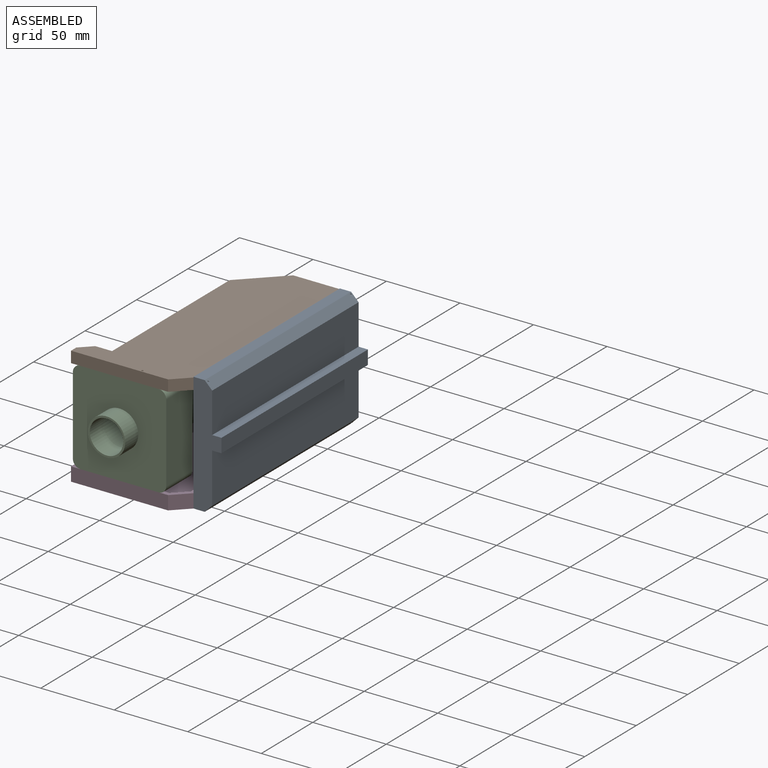
[diagram: assembled view]
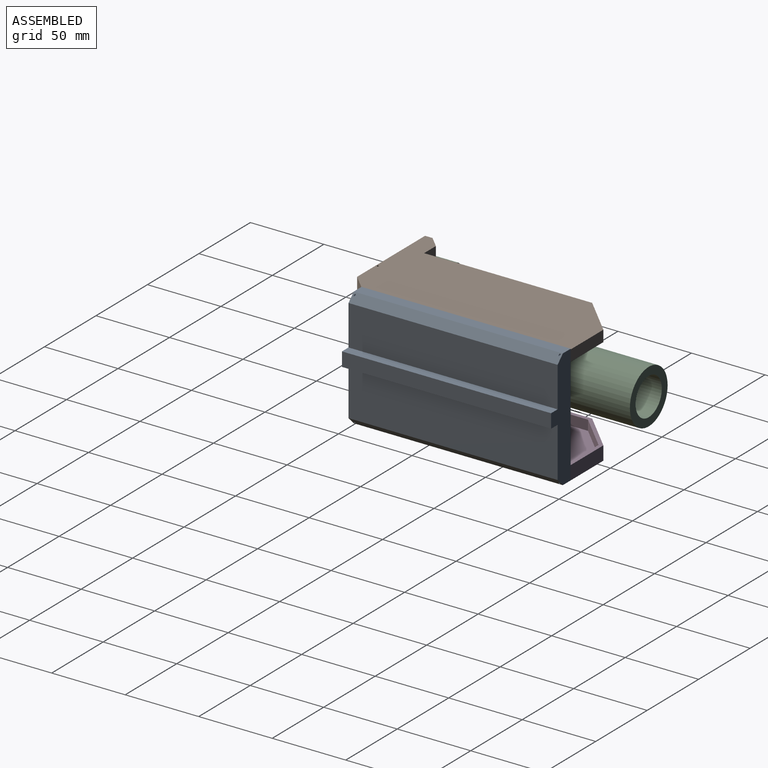
[diagram: assembled view, second angle]
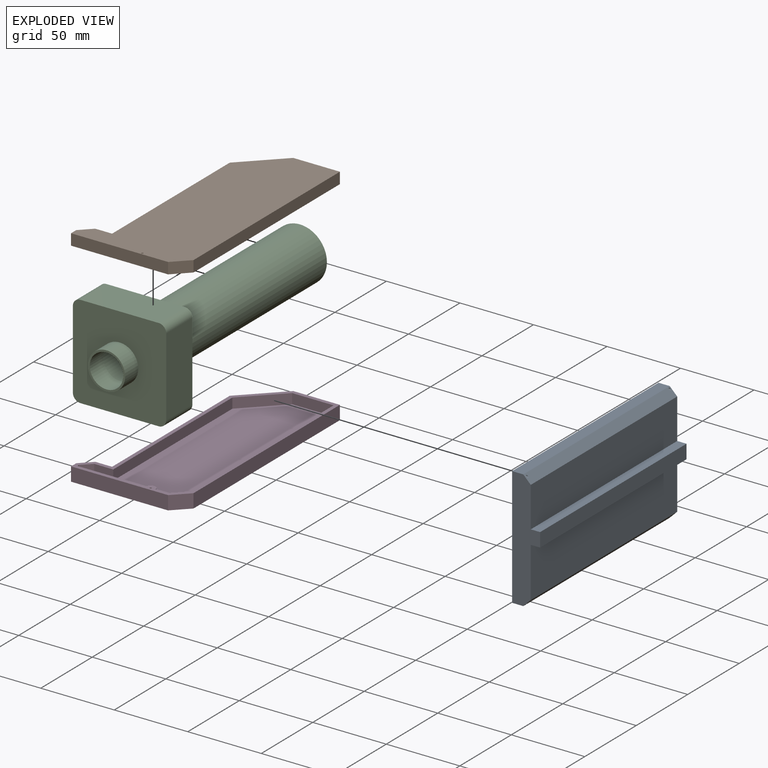
[diagram: exploded view]
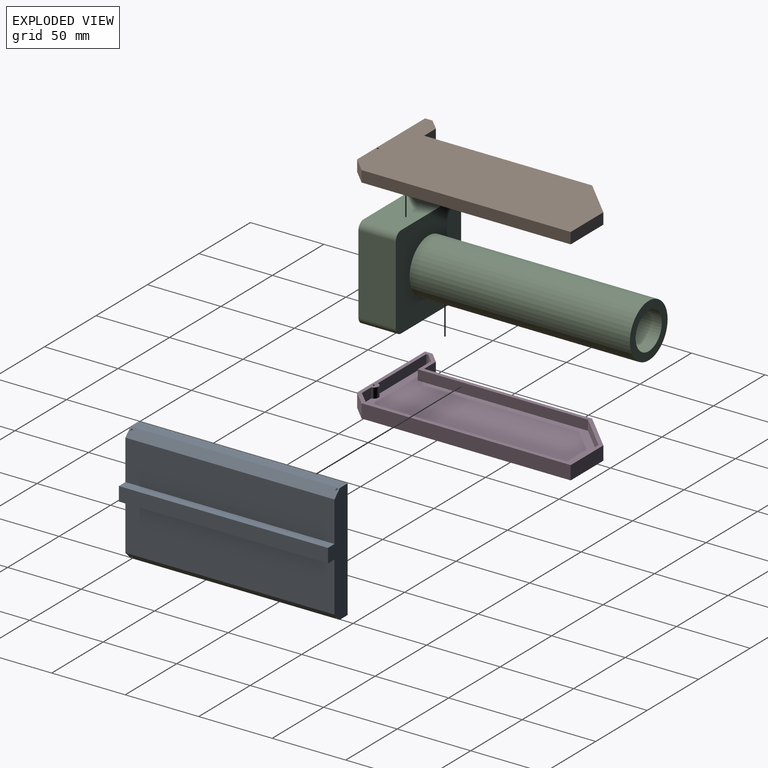
[diagram: exploded view, second angle]
ASSEMBLY  parts=4 mates=3
PART A: 16 faces, bbox 142.2x19.1x81 mm
  f0: plane 142.24x27.34mm, normal (0,-1,0), area 3888.8mm2, adj f2,f8,f11,f13
  f1: plane 142.24x7.62mm, normal (0,0,1), area 1083.9mm2, adj f2,f8,f10,f11
  f2: plane 80.96x19.05mm, normal (-1,0,0), area 1062.9mm2, adj f0,f1,f3,f9,f10,f11,f12,f13
  f3: plane 142.24x7.62mm, normal (0,0,-1), area 1083.9mm2, adj f2,f8,f10,f12
  f4: cylinder r=0.64mm len=9.31mm, axis (0,1,0), area 34.6mm2, adj f10,f11
  f5: cylinder r=0.64mm len=9.74mm, axis (0,1,0), area 36.3mm2, adj f10,f11
  f6: cylinder r=0.64mm len=9.64mm, axis (0,1,0), area 35.9mm2, adj f10,f12
  f7: cylinder r=0.64mm len=9.55mm, axis (0,1,0), area 35.5mm2, adj f10,f12
  f8: plane 80.96x19.05mm, normal (1,0,0), area 1062.9mm2, adj f0,f1,f3,f9,f10,f11,f12,f13
  f9: plane 142.24x33.94mm, normal (0,-1,0), area 4827.3mm2, adj f2,f8,f12,f14
  f10: plane 142.24x80.96mm, normal (0,1,0), area 11511mm2, adj f1,f2,f3,f4,f5,f6,f7,f8
  f11: plane 142.24x5.08mm, normal (0,-0.71,0.71), area 1018.3mm2, adj f0,f1,f2,f4,f5,f8
  f12: plane 142.24x5.08mm, normal (0,-0.71,-0.71), area 1018.3mm2, adj f2,f3,f6,f7,f8,f9
  f13: plane 142.24x6.35mm, normal (0,0,1), area 903.2mm2, adj f0,f2,f8,f15
  f14: plane 142.24x6.35mm, normal (0,0,-1), area 903.2mm2, adj f2,f8,f9,f15
  f15: plane 142.24x9.53mm, normal (0,-1,0), area 1354.8mm2, adj f2,f8,f13,f14
PART B: 24 faces, bbox 152.4x7.6x76.2 mm
  f0: plane 152.4x76.2mm, normal (0,1,0), area 1081.3mm2, adj f1,f2,f3,f4,f5,f7,f8,f9
  f1: plane 142.24x7.62mm, normal (0,0,1), area 1083.9mm2, adj f0,f2,f6,f11
  f2: plane 31.75x7.62mm, normal (-1,0,0), area 241.9mm2, adj f0,f1,f6,f7
  f3: plane 114.3x7.62mm, normal (0,0,-1), area 871mm2, adj f0,f6,f7,f8
  f4: cylinder r=0.64mm len=7.62mm, axis (0,1,0), area 30.4mm2, adj f0,f6
  f5: plane 66.04x7.62mm, normal (1,0,0), area 503.2mm2, adj f0,f6,f9,f11
  f6: plane 152.4x76.2mm, normal (0,-1,0), area 8547.1mm2, adj f1,f2,f3,f4,f5,f7,f8,f9
  f7: plane 25.4x25.4mm, normal (-0.71,0,-0.71), area 273.7mm2, adj f0,f2,f3,f6
  f8: plane 11.43x7.62mm, normal (-1,0,0), area 87.1mm2, adj f0,f3,f6,f10
  f9: plane 7.62x5.08mm, normal (0,0,-1), area 38.7mm2, adj f0,f5,f6,f10
  f10: plane 7.62x7.62mm, normal (-0.71,0,-0.71), area 82.1mm2, adj f0,f6,f8,f9
  f11: plane 10.16x10.16mm, normal (0.71,0,0.71), area 109.5mm2, adj f0,f1,f5,f6
  f12: plane 14.45x5.08mm, normal (-1,0,0), area 73.4mm2, adj f0,f16,f18,f23
  f13: plane 138.65x5.08mm, normal (0,0,-1), area 704.3mm2, adj f0,f14,f18,f23
  f14: plane 28.16x5.08mm, normal (1,0,0), area 143mm2, adj f0,f13,f18,f19
  f15: plane 115.79x5.08mm, normal (0,0,1), area 588.2mm2, adj f0,f18,f19,f20
  f16: cylinder r=3.17mm len=5.82mm, axis (0,1,0), area 37.4mm2, adj f0,f12,f17,f18
  f17: plane 42.17x5.08mm, normal (-1,0,0), area 214.2mm2, adj f0,f16,f18,f21
  f18: plane 147.32x71.12mm, normal (0,1,0), area 7465.8mm2, adj f12,f13,f14,f15,f16,f17,f19,f20
  f19: plane 23.91x23.91mm, normal (0.71,0,0.71), area 171.8mm2, adj f0,f14,f15,f18
  f20: plane 12.92x5.08mm, normal (1,0,0), area 65.6mm2, adj f0,f15,f18,f22
  f21: plane 5.08x1.49mm, normal (0,0,1), area 7.6mm2, adj f0,f17,f18,f22
  f22: plane 6.13x6.13mm, normal (0.71,0,0.71), area 44.1mm2, adj f0,f18,f20,f21
  f23: plane 8.67x8.67mm, normal (-0.71,0,-0.71), area 62.3mm2, adj f0,f12,f13,f18
PART C: 17 faces, bbox 63.5x188x63.5 mm
  f0: cylinder r=12.7mm len=174.75mm, axis (0,1,0), area 13944.6mm2, adj f8,f14
  f1: plane 53.34x25.4mm, normal (0,0,1), area 1354.8mm2, adj f5,f6,f9,f12
  f2: plane 53.34x25.4mm, normal (-1,0,0), area 1354.8mm2, adj f5,f6,f9,f10
  f3: plane 53.34x25.4mm, normal (0,0,-1), area 1354.8mm2, adj f5,f6,f10,f11
  f4: plane 53.34x25.4mm, normal (1,0,0), area 1354.8mm2, adj f5,f6,f11,f12
  f5: plane 63.5x63.5mm, normal (0,-1,0), area 3503.4mm2, adj f1,f2,f3,f4,f9,f10,f11,f12
  f6: plane 63.5x63.5mm, normal (0,1,0), area 2955.2mm2, adj f1,f2,f3,f4,f7,f9,f10,f11
  f7: cylinder r=18.32mm len=149.86mm, axis (0,-1,0), area 17253.9mm2, adj f6,f8
  f8: plane 36.65x36.65mm, normal (0,1,0), area 548.2mm2, adj f0,f7
  f9: cylinder r=5.08mm len=25.4mm, axis (0,-1,0), area 202.7mm2, adj f1,f2,f5,f6
  f10: cylinder r=5.08mm len=25.4mm, axis (0,1,0), area 202.7mm2, adj f2,f3,f5,f6
  f11: cylinder r=5.08mm len=25.4mm, axis (0,-1,0), area 202.7mm2, adj f3,f4,f5,f6
  f12: cylinder r=5.08mm len=25.4mm, axis (0,1,0), area 202.7mm2, adj f1,f4,f5,f6
  f13: cylinder r=11.38mm len=22.75mm, axis (0,-1,0), area 944mm2, adj f14,f16
  f14: plane 25.4x25.4mm, normal (0,1,0), area 100.2mm2, adj f0,f13
  f15: cylinder r=12.7mm len=25.4mm, axis (0,1,0), area 1013.4mm2, adj f5,f16
  f16: plane 25.4x25.4mm, normal (0,-1,0), area 100.2mm2, adj f13,f15
PART D: 24 faces, bbox 152.4x9.4x76.2 mm
  f0: plane 152.4x76.2mm, normal (0,-1,0), area 1086.4mm2, adj f1,f2,f3,f4,f5,f7,f8,f9
  f1: plane 114.3x9.4mm, normal (0,0,-1), area 1074.2mm2, adj f0,f6,f7,f8
  f2: plane 142.24x9.4mm, normal (0,0,1), area 1336.8mm2, adj f0,f3,f6,f11
  f3: plane 31.75x9.4mm, normal (-1,0,0), area 298.4mm2, adj f0,f2,f6,f7
  f4: cylinder r=0.63mm len=9.4mm, axis (0,1,0), area 37.3mm2, adj f0,f6
  f5: plane 66.04x9.4mm, normal (1,0,0), area 620.6mm2, adj f0,f6,f9,f11
  f6: plane 152.4x76.2mm, normal (0,1,0), area 8547.1mm2, adj f1,f2,f3,f4,f5,f7,f8,f9
  f7: plane 25.4x25.4mm, normal (-0.71,0,-0.71), area 337.6mm2, adj f0,f1,f3,f6
  f8: plane 11.43x9.4mm, normal (-1,0,0), area 107.4mm2, adj f0,f1,f6,f10
  f9: plane 9.4x5.08mm, normal (0,0,-1), area 47.7mm2, adj f0,f5,f6,f10
  f10: plane 9.4x7.62mm, normal (-0.71,0,-0.71), area 101.3mm2, adj f0,f6,f8,f9
  f11: plane 10.16x10.16mm, normal (0.71,0,0.71), area 135mm2, adj f0,f2,f5,f6
  f12: plane 9.15x6.86mm, normal (-1,0,0), area 62.8mm2, adj f0,f16,f18,f23
  f13: plane 115.79x6.86mm, normal (0,0,1), area 794.1mm2, adj f0,f18,f19,f20
  f14: plane 138.65x6.86mm, normal (0,0,-1), area 950.8mm2, adj f0,f15,f18,f23
  f15: plane 28.16x6.86mm, normal (1,0,0), area 193.1mm2, adj f0,f14,f18,f19
  f16: cylinder r=3.17mm len=6.86mm, axis (0,1,0), area 62.5mm2, adj f0,f12,f17,f18
  f17: plane 47.01x6.86mm, normal (-1,0,0), area 322.4mm2, adj f0,f16,f18,f21
  f18: plane 147.32x71.12mm, normal (0,-1,0), area 7460.7mm2, adj f12,f13,f14,f15,f16,f17,f19,f20
  f19: plane 23.91x23.91mm, normal (0.71,0,0.71), area 231.9mm2, adj f0,f13,f15,f18
  f20: plane 12.92x6.86mm, normal (1,0,0), area 88.6mm2, adj f0,f13,f18,f22
  f21: plane 6.86x1.49mm, normal (0,0,1), area 10.2mm2, adj f0,f17,f18,f22
  f22: plane 6.86x6.13mm, normal (0.71,0,0.71), area 59.5mm2, adj f0,f18,f20,f21
  f23: plane 8.67x8.67mm, normal (-0.71,0,-0.71), area 84.1mm2, adj f0,f12,f14,f18
PLACE A rot(axis=(0,0,1),90deg) t=(158.26,-72.48,20.87)mm
PLACE B rot(axis=(-0.58,0.58,-0.58),120deg) t=(123.34,-66.9,75.36)mm
PLACE C t=(108.73,-117.7,39.8)mm
PLACE D rot(axis=(-0.58,0.58,-0.58),120deg) t=(128.41,-71.19,-1.34)mm
MATE fastened D.f0 <-> C.f3  axis (0,0,1) through (108.73,-143.1,8.05)mm
MATE fastened B.f0 <-> C.f1  axis (0,0,-1) through (108.73,-143.1,71.55)mm
MATE fastened A.f10 <-> D.f2  axis (-1,0,0) through (151.91,-61.82,-1.34)mm
